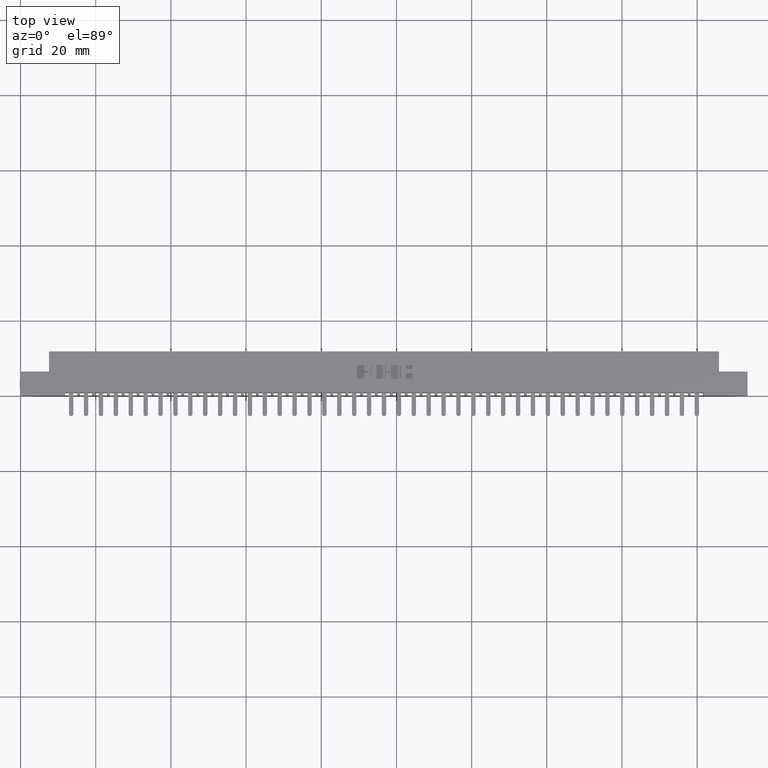
[diagram: clean part render]
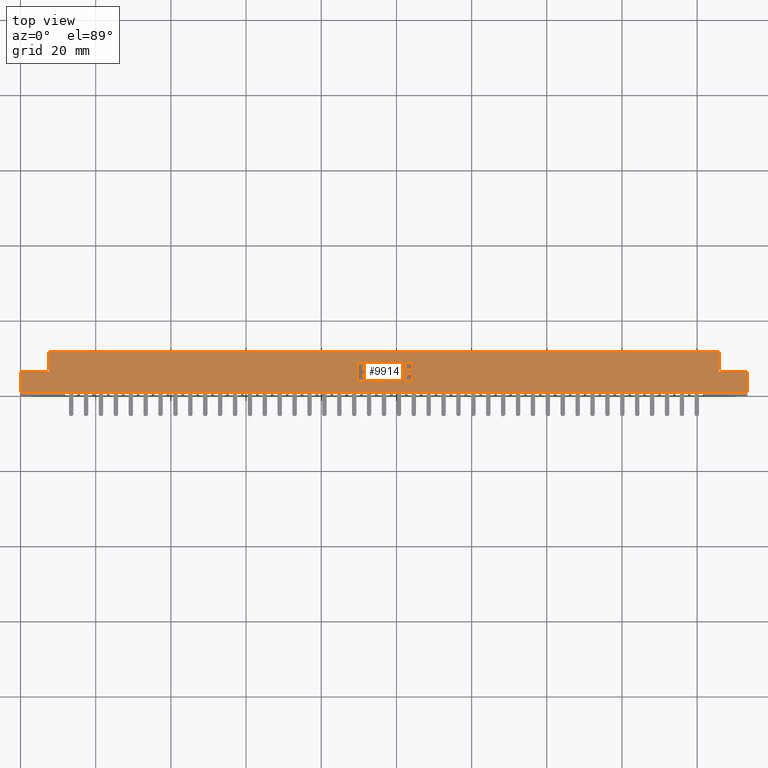
[diagram: same view with one face highlighted and labeled with its STEP entity id]
A machine part, top view. The second image highlights one B-rep face of the part: STEP entity #9914.
In plain terms, the highlighted planar face has unit normal (0, 0, -1).
Its self-contained STEP definition (entity closure, byte-faithful):
#13 = CARTESIAN_POINT ( 'NONE',  ( 3.978038053301265364, 0.1571589681657933890, 0.0000000000000000000 ) ) ;
#22 = CIRCLE ( 'NONE', #37802, 0.009815670203803066735 ) ;
#34 = VECTOR ( 'NONE', #4186, 39.37007874015748143 ) ;
#88 = VECTOR ( 'NONE', #26526, 39.37007874015748143 ) ;
#276 = CARTESIAN_POINT ( 'NONE',  ( 3.941229290037010724, 0.1571589681657842852, 0.0000000000000000000 ) ) ;
#392 = ORIENTED_EDGE ( 'NONE', *, *, #21578, .T. ) ;
#442 = AXIS2_PLACEMENT_3D ( 'NONE', #27745, #18543, #15655 ) ;
#577 = VECTOR ( 'NONE', #10563, 39.37007874015748143 ) ;
#596 = CARTESIAN_POINT ( 'NONE',  ( 0.0000000000000000000, 0.2500000000000000555, 0.0000000000000000000 ) ) ;
#645 = LINE ( 'NONE', #13073, #21291 ) ;
#670 = CARTESIAN_POINT ( 'NONE',  ( 4.103678631909940755, 0.0000000000000000000, 0.0000000000000000000 ) ) ;
#849 = VERTEX_POINT ( 'NONE', #23104 ) ;
#882 = CARTESIAN_POINT ( 'NONE',  ( 3.798411288571669431, 0.3338410318342135419, 0.0000000000000000000 ) ) ;
#921 = CARTESIAN_POINT ( 'NONE',  ( -0.0000000000000000000, 0.1473432979619866134, 0.0000000000000000000 ) ) ;
#947 = VERTEX_POINT ( 'NONE', #11404 ) ;
#974 = DIRECTION ( 'NONE',  ( 1.000000000000000000, 0.0000000000000000000, 0.0000000000000000000 ) ) ;
#990 = DIRECTION ( 'NONE',  ( -1.000000000000000000, 0.0000000000000000000, -0.0000000000000000000 ) ) ;
#1055 = VERTEX_POINT ( 'NONE', #37157 ) ;
#1177 = VERTEX_POINT ( 'NONE', #1193 ) ;
#1193 = CARTESIAN_POINT ( 'NONE',  ( 3.626637060005084123, 0.2386290308573602581, 0.0000000000000000000 ) ) ;
#1354 = LINE ( 'NONE', #38883, #2437 ) ;
#1481 = CIRCLE ( 'NONE', #23624, 0.009815670203787768208 ) ;
#1524 = LINE ( 'NONE', #921, #34 ) ;
#1545 = EDGE_CURVE ( 'NONE', #33516, #28561, #35057, .T. ) ;
#1549 = CARTESIAN_POINT ( 'NONE',  ( 3.981964321382818639, 0.1873421540424564380, 0.0000000000000000000 ) ) ;
#1585 = DIRECTION ( 'NONE',  ( -0.0000000000000000000, 0.0000000000000000000, 1.000000000000000000 ) ) ;
#1596 = FACE_OUTER_BOUND ( 'NONE', #15384, .T. ) ;
#1646 = VERTEX_POINT ( 'NONE', #20338 ) ;
#1705 = LINE ( 'NONE', #5373, #12940 ) ;
#1806 = DIRECTION ( 'NONE',  ( 1.000000000000000000, 0.0000000000000000000, 0.0000000000000000000 ) ) ;
#1809 = EDGE_CURVE ( 'NONE', #3516, #16941, #25321, .T. ) ;
#1828 = CARTESIAN_POINT ( 'NONE',  ( 4.034478156973166030, 0.0000000000000000000, 0.0000000000000000000 ) ) ;
#1831 = ORIENTED_EDGE ( 'NONE', *, *, #4949, .T. ) ;
#1970 = DIRECTION ( 'NONE',  ( 1.000000000000000000, 0.0000000000000000000, 0.0000000000000000000 ) ) ;
#2039 = DIRECTION ( 'NONE',  ( 0.0000000000000000000, -1.000000000000000000, 0.0000000000000000000 ) ) ;
#2067 = EDGE_LOOP ( 'NONE', ( #9147, #6451, #392, #31822, #4927, #18411, #3649, #37374, #2541, #18456, #31696, #39348, #24249, #17886 ) ) ;
#2096 = VERTEX_POINT ( 'NONE', #5326 ) ;
#2275 = CARTESIAN_POINT ( 'NONE',  ( 3.626637060005084123, 0.2072188862052039837, 0.0000000000000000000 ) ) ;
#2437 = VECTOR ( 'NONE', #7451, 39.37007874015748143 ) ;
#2457 = EDGE_CURVE ( 'NONE', #34025, #22173, #38552, .T. ) ;
#2541 = ORIENTED_EDGE ( 'NONE', *, *, #29084, .T. ) ;
#2607 = EDGE_CURVE ( 'NONE', #25742, #35543, #7903, .T. ) ;
#2647 = VERTEX_POINT ( 'NONE', #11969 ) ;
#2649 = VERTEX_POINT ( 'NONE', #40155 ) ;
#2736 = DIRECTION ( 'NONE',  ( 1.000000000000000000, 0.0000000000000000000, 0.0000000000000000000 ) ) ;
#2758 = EDGE_LOOP ( 'NONE', ( #8494, #9590, #12289, #7552, #17605, #39168, #31809, #24742, #8286, #29663, #34497, #11203, #36993, #21813, #6831, #17223, #34285, #37948, #9564, #36787 ) ) ;
#2792 = AXIS2_PLACEMENT_3D ( 'NONE', #30954, #12901, #15396 ) ;
#2889 = DIRECTION ( 'NONE',  ( 1.000000000000000000, 0.0000000000000000000, 0.0000000000000000000 ) ) ;
#2983 = EDGE_CURVE ( 'NONE', #13417, #13649, #22787, .T. ) ;
#3300 = ORIENTED_EDGE ( 'NONE', *, *, #27101, .T. ) ;
#3431 = VERTEX_POINT ( 'NONE', #38110 ) ;
#3432 = CARTESIAN_POINT ( 'NONE',  ( 7.613999999999999879, 0.2500000000000000555, 0.0000000000000000000 ) ) ;
#3516 = VERTEX_POINT ( 'NONE', #28952 ) ;
#3532 = DIRECTION ( 'NONE',  ( -0.0000000000000000000, 0.0000000000000000000, 1.000000000000000000 ) ) ;
#3538 = DIRECTION ( 'NONE',  ( -0.0000000000000000000, 1.000000000000000000, -0.0000000000000000000 ) ) ;
#3612 = VECTOR ( 'NONE', #36447, 39.37007874015748143 ) ;
#3624 = VERTEX_POINT ( 'NONE', #38296 ) ;
#3649 = ORIENTED_EDGE ( 'NONE', *, *, #2607, .T. ) ;
#3665 = LINE ( 'NONE', #596, #10520 ) ;
#3669 = AXIS2_PLACEMENT_3D ( 'NONE', #7915, #24269, #1806 ) ;
#3794 = DIRECTION ( 'NONE',  ( 1.000000000000000000, 0.0000000000000000000, 0.0000000000000000000 ) ) ;
#3930 = DIRECTION ( 'NONE',  ( 1.000000000000000000, 0.0000000000000000000, 0.0000000000000000000 ) ) ;
#3938 = LINE ( 'NONE', #12683, #17541 ) ;
#3941 = ORIENTED_EDGE ( 'NONE', *, *, #23140, .F. ) ;
#3970 = EDGE_CURVE ( 'NONE', #3624, #4140, #1524, .T. ) ;
#4031 = CARTESIAN_POINT ( 'NONE',  ( 0.0000000000000000000, 0.2500000000000000555, 0.0000000000000000000 ) ) ;
#4049 = DIRECTION ( 'NONE',  ( -0.0000000000000000000, 0.0000000000000000000, 1.000000000000000000 ) ) ;
#4140 = VERTEX_POINT ( 'NONE', #23563 ) ;
#4186 = DIRECTION ( 'NONE',  ( 1.000000000000000000, 0.0000000000000000000, 0.0000000000000000000 ) ) ;
#4325 = AXIS2_PLACEMENT_3D ( 'NONE', #17296, #36289, #27534 ) ;
#4335 = CIRCLE ( 'NONE', #10784, 0.009815670203805798924 ) ;
#4343 = ORIENTED_EDGE ( 'NONE', *, *, #25117, .F. ) ;
#4461 = DIRECTION ( 'NONE',  ( 1.000000000000000000, 0.0000000000000000000, 0.0000000000000000000 ) ) ;
#4657 = VERTEX_POINT ( 'NONE', #26560 ) ;
#4786 = AXIS2_PLACEMENT_3D ( 'NONE', #21470, #40237, #22079 ) ;
#4792 = VERTEX_POINT ( 'NONE', #31058 ) ;
#4793 = CARTESIAN_POINT ( 'NONE',  ( 3.951044960240806425, 0.1571589681657842852, 0.0000000000000000000 ) ) ;
#4927 = ORIENTED_EDGE ( 'NONE', *, *, #11996, .T. ) ;
#4949 = EDGE_CURVE ( 'NONE', #947, #14975, #17676, .T. ) ;
#5071 = LINE ( 'NONE', #17529, #39497 ) ;
#5308 = VERTEX_POINT ( 'NONE', #13934 ) ;
#5326 = CARTESIAN_POINT ( 'NONE',  ( 4.034478156973166030, 0.3036578454992633347, 0.0000000000000000000 ) ) ;
#5354 = VERTEX_POINT ( 'NONE', #17024 ) ;
#5373 = CARTESIAN_POINT ( 'NONE',  ( -0.0000000000000000000, 0.2386290308573602581, 0.0000000000000000000 ) ) ;
#5409 = CARTESIAN_POINT ( 'NONE',  ( 3.595226915352909725, 0.0000000000000000000, 0.0000000000000000000 ) ) ;
#5614 = DIRECTION ( 'NONE',  ( -0.0000000000000000000, 0.0000000000000000000, 1.000000000000000000 ) ) ;
#5843 = DIRECTION ( 'NONE',  ( 1.000000000000000000, 0.0000000000000000000, 0.0000000000000000000 ) ) ;
#5868 = CIRCLE ( 'NONE', #28705, 0.009815670203822736764 ) ;
#5901 = ORIENTED_EDGE ( 'NONE', *, *, #2457, .F. ) ;
#6059 = DIRECTION ( 'NONE',  ( -1.000000000000000000, 0.0000000000000000000, 0.0000000000000000000 ) ) ;
#6104 = VERTEX_POINT ( 'NONE', #16713 ) ;
#6119 = EDGE_CURVE ( 'NONE', #22573, #35307, #26258, .T. ) ;
#6305 = AXIS2_PLACEMENT_3D ( 'NONE', #32334, #32527, #9005 ) ;
#6412 = ORIENTED_EDGE ( 'NONE', *, *, #34072, .F. ) ;
#6451 = ORIENTED_EDGE ( 'NONE', *, *, #20317, .F. ) ;
#6544 = DIRECTION ( 'NONE',  ( 1.000000000000000000, 0.0000000000000000000, 0.0000000000000000000 ) ) ;
#6703 = CARTESIAN_POINT ( 'NONE',  ( 7.316000000000000725, 0.2500000000000000555, 0.0000000000000000000 ) ) ;
#6768 = ORIENTED_EDGE ( 'NONE', *, *, #1809, .F. ) ;
#6780 = VERTEX_POINT ( 'NONE', #32821 ) ;
#6781 = DIRECTION ( 'NONE',  ( -0.0000000000000000000, 0.0000000000000000000, 1.000000000000000000 ) ) ;
#6809 = DIRECTION ( 'NONE',  ( 1.000000000000000000, 0.0000000000000000000, 0.0000000000000000000 ) ) ;
#6831 = ORIENTED_EDGE ( 'NONE', *, *, #25980, .F. ) ;
#7121 = CARTESIAN_POINT ( 'NONE',  ( 3.941229290037011612, 0.3338410318342138194, 0.0000000000000000000 ) ) ;
#7201 = CIRCLE ( 'NONE', #30038, 0.009815670203841313918 ) ;
#7329 = AXIS2_PLACEMENT_3D ( 'NONE', #16322, #13626, #25733 ) ;
#7378 = CARTESIAN_POINT ( 'NONE',  ( 4.044293827176966616, 0.2268502266127609690, 0.0000000000000000000 ) ) ;
#7415 = EDGE_CURVE ( 'NONE', #4140, #10950, #34060, .T. ) ;
#7422 = EDGE_CURVE ( 'NONE', #9441, #22645, #39971, .T. ) ;
#7451 = DIRECTION ( 'NONE',  ( -1.000000000000000000, -3.427012734660361250E-14, 0.0000000000000000000 ) ) ;
#7496 = EDGE_LOOP ( 'NONE', ( #3941, #7613, #38507, #36549, #13126, #13166, #31703, #5901 ) ) ;
#7501 = LINE ( 'NONE', #38744, #8936 ) ;
#7542 = CIRCLE ( 'NONE', #30397, 0.009815670203806891800 ) ;
#7552 = ORIENTED_EDGE ( 'NONE', *, *, #34517, .F. ) ;
#7613 = ORIENTED_EDGE ( 'NONE', *, *, #15180, .F. ) ;
#7644 = EDGE_CURVE ( 'NONE', #10950, #34641, #28645, .T. ) ;
#7716 = ORIENTED_EDGE ( 'NONE', *, *, #26425, .F. ) ;
#7721 = CARTESIAN_POINT ( 'NONE',  ( 0.2979999999999999871, 0.2500000000000000555, 0.0000000000000000000 ) ) ;
#7903 = LINE ( 'NONE', #20397, #27308 ) ;
#7915 = CARTESIAN_POINT ( 'NONE',  ( 4.093862961706132175, 0.3338410318342143746, 0.0000000000000000000 ) ) ;
#7999 = EDGE_CURVE ( 'NONE', #14605, #2649, #39625, .T. ) ;
#8095 = EDGE_CURVE ( 'NONE', #4657, #3431, #25135, .T. ) ;
#8111 = EDGE_CURVE ( 'NONE', #24753, #17243, #31676, .T. ) ;
#8133 = DIRECTION ( 'NONE',  ( 0.0000000000000000000, -1.000000000000000000, 0.0000000000000000000 ) ) ;
#8252 = VECTOR ( 'NONE', #38150, 39.37007874015748143 ) ;
#8286 = ORIENTED_EDGE ( 'NONE', *, *, #35216, .F. ) ;
#8441 = VERTEX_POINT ( 'NONE', #15062 ) ;
#8488 = CIRCLE ( 'NONE', #18955, 0.03141014465217440571 ) ;
#8494 = ORIENTED_EDGE ( 'NONE', *, *, #39254, .F. ) ;
#8582 = EDGE_CURVE ( 'NONE', #16941, #1646, #22234, .T. ) ;
#8719 = CARTESIAN_POINT ( 'NONE',  ( 4.093862961706153492, 0.2170345564089738721, 0.0000000000000000000 ) ) ;
#8819 = VERTEX_POINT ( 'NONE', #33624 ) ;
#8862 = EDGE_CURVE ( 'NONE', #5308, #36300, #26292, .T. ) ;
#8907 = CARTESIAN_POINT ( 'NONE',  ( 4.093862961706133952, 0.1571589681657933890, 0.0000000000000000000 ) ) ;
#8936 = VECTOR ( 'NONE', #10340, 39.37007874015748143 ) ;
#9005 = DIRECTION ( 'NONE',  ( 1.000000000000000000, 0.0000000000000000000, 0.0000000000000000000 ) ) ;
#9012 = CARTESIAN_POINT ( 'NONE',  ( 3.595226915352909725, 0.2985046191005232274, 0.0000000000000000000 ) ) ;
#9133 = CARTESIAN_POINT ( 'NONE',  ( 0.0000000000000000000, 0.3436567020380361659, 0.0000000000000000000 ) ) ;
#9141 = AXIS2_PLACEMENT_3D ( 'NONE', #2275, #30658, #30876 ) ;
#9147 = ORIENTED_EDGE ( 'NONE', *, *, #25475, .T. ) ;
#9330 = EDGE_CURVE ( 'NONE', #27591, #35311, #32213, .T. ) ;
#9366 = DIRECTION ( 'NONE',  ( -1.000000000000000000, 0.0000000000000000000, 0.0000000000000000000 ) ) ;
#9372 = CARTESIAN_POINT ( 'NONE',  ( 3.981964321382818639, 0.0000000000000000000, 0.0000000000000000000 ) ) ;
#9441 = VERTEX_POINT ( 'NONE', #7721 ) ;
#9467 = CARTESIAN_POINT ( 'NONE',  ( 3.881844485303985071, 0.1571589681657912518, 0.0000000000000000000 ) ) ;
#9518 = CIRCLE ( 'NONE', #18673, 0.009815670203787221770 ) ;
#9564 = ORIENTED_EDGE ( 'NONE', *, *, #26211, .F. ) ;
#9575 = CARTESIAN_POINT ( 'NONE',  ( -0.0000000000000000000, 0.1473432979619866134, 0.0000000000000000000 ) ) ;
#9590 = ORIENTED_EDGE ( 'NONE', *, *, #8111, .F. ) ;
#9752 = AXIS2_PLACEMENT_3D ( 'NONE', #18022, #11883, #2736 ) ;
#9792 = CARTESIAN_POINT ( 'NONE',  ( 3.825404381632127482, 0.3338410318342135419, 0.0000000000000000000 ) ) ;
#9875 = VECTOR ( 'NONE', #33853, 39.37007874015748143 ) ;
#9914 = ADVANCED_FACE ( 'NONE', ( #29578, #26089, #1596, #32233, #13811 ), #13213, .F. ) ;
#9972 = DIRECTION ( 'NONE',  ( 1.000000000000000000, 6.876017002796106242E-15, 0.0000000000000000000 ) ) ;
#10340 = DIRECTION ( 'NONE',  ( 0.0000000000000000000, -1.000000000000000000, 0.0000000000000000000 ) ) ;
#10421 = CARTESIAN_POINT ( 'NONE',  ( 3.647004575677973204, 0.2455000000000237825, 0.0000000000000000000 ) ) ;
#10500 = ORIENTED_EDGE ( 'NONE', *, *, #39594, .T. ) ;
#10520 = VECTOR ( 'NONE', #19791, 39.37007874015748143 ) ;
#10563 = DIRECTION ( 'NONE',  ( -1.000000000000000000, 0.0000000000000000000, 0.0000000000000000000 ) ) ;
#10740 = CARTESIAN_POINT ( 'NONE',  ( 0.0000000000000000000, 0.3436567020380544846, 0.0000000000000000000 ) ) ;
#10745 = EDGE_CURVE ( 'NONE', #35543, #38627, #15949, .T. ) ;
#10784 = AXIS2_PLACEMENT_3D ( 'NONE', #36691, #39528, #17698 ) ;
#10950 = VERTEX_POINT ( 'NONE', #28782 ) ;
#11046 = EDGE_CURVE ( 'NONE', #33344, #33896, #12063, .T. ) ;
#11121 = CARTESIAN_POINT ( 'NONE',  ( 3.626637060005109436, 0.1924953808994938065, 0.0000000000000000000 ) ) ;
#11173 = DIRECTION ( 'NONE',  ( 1.000000000000000000, 0.0000000000000000000, 0.0000000000000000000 ) ) ;
#11203 = ORIENTED_EDGE ( 'NONE', *, *, #7644, .F. ) ;
#11288 = ORIENTED_EDGE ( 'NONE', *, *, #27261, .F. ) ;
#11403 = DIRECTION ( 'NONE',  ( 1.000000000000000000, 0.0000000000000000000, 0.0000000000000000000 ) ) ;
#11404 = CARTESIAN_POINT ( 'NONE',  ( 3.595226915352927488, 0.1924953808994938065, 0.0000000000000000000 ) ) ;
#11503 = EDGE_CURVE ( 'NONE', #11814, #13649, #5071, .T. ) ;
#11645 = LINE ( 'NONE', #23750, #16226 ) ;
#11707 = AXIS2_PLACEMENT_3D ( 'NONE', #7121, #23264, #4461 ) ;
#11720 = ORIENTED_EDGE ( 'NONE', *, *, #12380, .F. ) ;
#11814 = VERTEX_POINT ( 'NONE', #13992 ) ;
#11840 = CARTESIAN_POINT ( 'NONE',  ( 3.662955039759169029, 0.0000000000000000000, 0.0000000000000000000 ) ) ;
#11883 = DIRECTION ( 'NONE',  ( -0.0000000000000000000, 0.0000000000000000000, 1.000000000000000000 ) ) ;
#11936 = EDGE_CURVE ( 'NONE', #22763, #20602, #4335, .T. ) ;
#11948 = CARTESIAN_POINT ( 'NONE',  ( 3.626637060005084123, 0.2837811137948617612, 0.0000000000000000000 ) ) ;
#11949 = AXIS2_PLACEMENT_3D ( 'NONE', #9792, #22292, #25144 ) ;
#11953 = VECTOR ( 'NONE', #30266, 39.37007874015748143 ) ;
#11969 = CARTESIAN_POINT ( 'NONE',  ( 3.941229290037013833, 0.3436567020380100757, 0.0000000000000000000 ) ) ;
#11996 = EDGE_CURVE ( 'NONE', #5354, #38012, #34436, .T. ) ;
#12063 = CIRCLE ( 'NONE', #21902, 0.006870969142663458512 ) ;
#12289 = ORIENTED_EDGE ( 'NONE', *, *, #39225, .F. ) ;
#12294 = CARTESIAN_POINT ( 'NONE',  ( 0.2979999999999999871, 0.4600000000000000200, 0.0000000000000000000 ) ) ;
#12371 = VECTOR ( 'NONE', #28916, 39.37007874015748143 ) ;
#12380 = EDGE_CURVE ( 'NONE', #38870, #35307, #14560, .T. ) ;
#12438 = VECTOR ( 'NONE', #38622, 39.37007874015748143 ) ;
#12439 = DIRECTION ( 'NONE',  ( -0.0000000000000000000, 0.0000000000000000000, 1.000000000000000000 ) ) ;
#12463 = LINE ( 'NONE', #12842, #33698 ) ;
#12484 = EDGE_CURVE ( 'NONE', #6104, #6780, #12463, .T. ) ;
#12535 = CARTESIAN_POINT ( 'NONE',  ( 3.647004575677997629, 0.1542142671046513869, 0.0000000000000000000 ) ) ;
#12564 = CARTESIAN_POINT ( 'NONE',  ( 0.0000000000000000000, 0.1473432979619880290, 0.0000000000000000000 ) ) ;
#12667 = DIRECTION ( 'NONE',  ( 0.0000000000000000000, 1.000000000000000000, -0.0000000000000000000 ) ) ;
#12683 = CARTESIAN_POINT ( 'NONE',  ( 7.316000000000000725, 0.2500000000000000555, 0.0000000000000000000 ) ) ;
#12842 = CARTESIAN_POINT ( 'NONE',  ( 7.613999999999999879, 0.03099999999999999978, 0.0000000000000000000 ) ) ;
#12901 = DIRECTION ( 'NONE',  ( -0.0000000000000000000, 0.0000000000000000000, 1.000000000000000000 ) ) ;
#12937 = DIRECTION ( 'NONE',  ( -0.0000000000000000000, 0.0000000000000000000, 1.000000000000000000 ) ) ;
#12940 = VECTOR ( 'NONE', #20668, 39.37007874015748143 ) ;
#12947 = CARTESIAN_POINT ( 'NONE',  ( -0.0000000000000000000, 0.3299147637527391486, 0.0000000000000000000 ) ) ;
#13073 = CARTESIAN_POINT ( 'NONE',  ( 3.595226915352927488, 0.0000000000000000000, 0.0000000000000000000 ) ) ;
#13126 = ORIENTED_EDGE ( 'NONE', *, *, #32542, .F. ) ;
#13166 = ORIENTED_EDGE ( 'NONE', *, *, #7999, .F. ) ;
#13205 = VECTOR ( 'NONE', #37526, 39.37007874015748143 ) ;
#13213 = PLANE ( 'NONE',  #31592 ) ;
#13288 = LINE ( 'NONE', #32500, #12438 ) ;
#13368 = ORIENTED_EDGE ( 'NONE', *, *, #27915, .F. ) ;
#13417 = VERTEX_POINT ( 'NONE', #1549 ) ;
#13525 = AXIS2_PLACEMENT_3D ( 'NONE', #18489, #27693, #39694 ) ;
#13548 = DIRECTION ( 'NONE',  ( 1.000000000000000000, -0.0000000000000000000, -0.0000000000000000000 ) ) ;
#13626 = DIRECTION ( 'NONE',  ( -0.0000000000000000000, 0.0000000000000000000, 1.000000000000000000 ) ) ;
#13638 = AXIS2_PLACEMENT_3D ( 'NONE', #24571, #3532, #15954 ) ;
#13649 = VERTEX_POINT ( 'NONE', #18665 ) ;
#13701 = AXIS2_PLACEMENT_3D ( 'NONE', #36405, #20677, #37018 ) ;
#13811 = FACE_BOUND ( 'NONE', #2067, .T. ) ;
#13853 = VERTEX_POINT ( 'NONE', #32142 ) ;
#13904 = LINE ( 'NONE', #16768, #19637 ) ;
#13929 = LINE ( 'NONE', #23165, #23193 ) ;
#13934 = CARTESIAN_POINT ( 'NONE',  ( 3.815588711428330893, 0.1542142671046513869, 0.0000000000000000000 ) ) ;
#13992 = CARTESIAN_POINT ( 'NONE',  ( 4.034478156973179352, 0.2170345564089721235, 0.0000000000000000000 ) ) ;
#14229 = CARTESIAN_POINT ( 'NONE',  ( 3.951044960240806425, 0.3338410318342043825, 0.0000000000000000000 ) ) ;
#14234 = CARTESIAN_POINT ( 'NONE',  ( 3.951044960240806425, 0.0000000000000000000, 0.0000000000000000000 ) ) ;
#14247 = VERTEX_POINT ( 'NONE', #19224 ) ;
#14480 = CARTESIAN_POINT ( 'NONE',  ( 3.891660155507787877, 0.1571589681657912518, 0.0000000000000000000 ) ) ;
#14484 = VECTOR ( 'NONE', #13548, 39.37007874015748143 ) ;
#14513 = EDGE_CURVE ( 'NONE', #21110, #15842, #38098, .T. ) ;
#14560 = LINE ( 'NONE', #5409, #38876 ) ;
#14580 = LINE ( 'NONE', #39502, #3612 ) ;
#14605 = VERTEX_POINT ( 'NONE', #32785 ) ;
#14655 = LINE ( 'NONE', #1828, #32714 ) ;
#14837 = VECTOR ( 'NONE', #29324, 39.37007874015748143 ) ;
#14860 = ORIENTED_EDGE ( 'NONE', *, *, #22160, .T. ) ;
#14929 = VECTOR ( 'NONE', #38481, 39.37007874015748143 ) ;
#14975 = VERTEX_POINT ( 'NONE', #19274 ) ;
#14982 = CARTESIAN_POINT ( 'NONE',  ( 4.008221239177998108, 0.1873421540424564380, 0.0000000000000000000 ) ) ;
#15062 = CARTESIAN_POINT ( 'NONE',  ( 3.798411288571669431, 0.1571589681657933890, 0.0000000000000000000 ) ) ;
#15180 = EDGE_CURVE ( 'NONE', #8441, #32666, #11645, .T. ) ;
#15238 = EDGE_CURVE ( 'NONE', #1177, #33344, #1705, .T. ) ;
#15384 = EDGE_LOOP ( 'NONE', ( #37267, #20999, #6412, #33281, #34905, #3300, #19416, #27601 ) ) ;
#15396 = DIRECTION ( 'NONE',  ( 1.000000000000000000, 0.0000000000000000000, 0.0000000000000000000 ) ) ;
#15503 = CARTESIAN_POINT ( 'NONE',  ( 4.093862961706166814, 0.2744562271012369603, 0.0000000000000000000 ) ) ;
#15611 = CIRCLE ( 'NONE', #22912, 0.009815670203806891800 ) ;
#15655 = DIRECTION ( 'NONE',  ( 1.000000000000000000, 0.0000000000000000000, 0.0000000000000000000 ) ) ;
#15779 = DIRECTION ( 'NONE',  ( 1.000000000000000000, 0.0000000000000000000, 0.0000000000000000000 ) ) ;
#15835 = CARTESIAN_POINT ( 'NONE',  ( 4.093862961706156156, 0.2268502266127609690, 0.0000000000000000000 ) ) ;
#15842 = VERTEX_POINT ( 'NONE', #7378 ) ;
#15878 = EDGE_CURVE ( 'NONE', #1646, #36792, #5868, .T. ) ;
#15900 = LINE ( 'NONE', #25303, #28422 ) ;
#15926 = CARTESIAN_POINT ( 'NONE',  ( -0.0000000000000000000, 0.2744562271012370158, 0.0000000000000000000 ) ) ;
#15949 = CIRCLE ( 'NONE', #25127, 0.009815670203797057652 ) ;
#15954 = DIRECTION ( 'NONE',  ( 1.000000000000000000, 0.0000000000000000000, 0.0000000000000000000 ) ) ;
#15982 = DIRECTION ( 'NONE',  ( -0.0000000000000000000, 0.0000000000000000000, 1.000000000000000000 ) ) ;
#16089 = CIRCLE ( 'NONE', #29141, 0.006870969142662365636 ) ;
#16226 = VECTOR ( 'NONE', #23551, 39.37007874015748143 ) ;
#16322 = CARTESIAN_POINT ( 'NONE',  ( 3.626637060005125424, 0.2985046191005232274, 0.0000000000000000000 ) ) ;
#16585 = EDGE_CURVE ( 'NONE', #25447, #36003, #35030, .T. ) ;
#16661 = CARTESIAN_POINT ( 'NONE',  ( 3.839146319917449812, 0.2288133606535490416, 0.0000000000000000000 ) ) ;
#16674 = LINE ( 'NONE', #32030, #24890 ) ;
#16713 = CARTESIAN_POINT ( 'NONE',  ( 7.613999999999999879, 0.03099999999999999978, 0.0000000000000000000 ) ) ;
#16768 = CARTESIAN_POINT ( 'NONE',  ( 7.613999999999999879, 0.4600000000000000200, 0.0000000000000000000 ) ) ;
#16841 = LINE ( 'NONE', #38287, #14837 ) ;
#16941 = VERTEX_POINT ( 'NONE', #31711 ) ;
#17024 = CARTESIAN_POINT ( 'NONE',  ( 3.941229290037010724, 0.1473432979619880290, 0.0000000000000000000 ) ) ;
#17066 = DIRECTION ( 'NONE',  ( 1.000000000000000000, 0.0000000000000000000, 0.0000000000000000000 ) ) ;
#17077 = ORIENTED_EDGE ( 'NONE', *, *, #19025, .F. ) ;
#17130 = CARTESIAN_POINT ( 'NONE',  ( 3.815588711428330893, 0.0000000000000000000, 0.0000000000000000000 ) ) ;
#17162 = AXIS2_PLACEMENT_3D ( 'NONE', #36474, #26674, #20546 ) ;
#17223 = ORIENTED_EDGE ( 'NONE', *, *, #28749, .F. ) ;
#17243 = VERTEX_POINT ( 'NONE', #15503 ) ;
#17245 = CARTESIAN_POINT ( 'NONE',  ( 3.872028815100188037, 0.2386290308573532359, 0.0000000000000000000 ) ) ;
#17296 = CARTESIAN_POINT ( 'NONE',  ( 4.008221239177991890, 0.3036578459575330347, 0.0000000000000000000 ) ) ;
#17312 = DIRECTION ( 'NONE',  ( -0.0000000000000000000, 0.0000000000000000000, 1.000000000000000000 ) ) ;
#17412 = VERTEX_POINT ( 'NONE', #29609 ) ;
#17438 = ORIENTED_EDGE ( 'NONE', *, *, #38408, .F. ) ;
#17485 = EDGE_CURVE ( 'NONE', #5308, #35311, #36125, .T. ) ;
#17529 = CARTESIAN_POINT ( 'NONE',  ( 4.034478156973179352, 0.0000000000000000000, 0.0000000000000000000 ) ) ;
#17541 = VECTOR ( 'NONE', #3538, 39.37007874015748143 ) ;
#17605 = ORIENTED_EDGE ( 'NONE', *, *, #27628, .T. ) ;
#17632 = CIRCLE ( 'NONE', #24829, 0.009815670203803066735 ) ;
#17676 = CIRCLE ( 'NONE', #30086, 0.03141014465218205237 ) ;
#17698 = DIRECTION ( 'NONE',  ( 1.000000000000000000, 0.0000000000000000000, 0.0000000000000000000 ) ) ;
#17773 = VECTOR ( 'NONE', #37238, 39.37007874015748143 ) ;
#17886 = ORIENTED_EDGE ( 'NONE', *, *, #9330, .F. ) ;
#18017 = CIRCLE ( 'NONE', #442, 0.006870969142648706424 ) ;
#18022 = CARTESIAN_POINT ( 'NONE',  ( 4.044293827176977274, 0.2842718973050486486, 0.0000000000000000000 ) ) ;
#18411 = ORIENTED_EDGE ( 'NONE', *, *, #38994, .F. ) ;
#18447 = DIRECTION ( 'NONE',  ( 1.000000000000000000, 0.0000000000000000000, 0.0000000000000000000 ) ) ;
#18456 = ORIENTED_EDGE ( 'NONE', *, *, #20755, .T. ) ;
#18489 = CARTESIAN_POINT ( 'NONE',  ( 3.640133606535351340, 0.3367857328953897111, 0.0000000000000000000 ) ) ;
#18543 = DIRECTION ( 'NONE',  ( -0.0000000000000000000, 0.0000000000000000000, 1.000000000000000000 ) ) ;
#18665 = CARTESIAN_POINT ( 'NONE',  ( 4.034478156973179352, 0.1873421540424564380, 0.0000000000000000000 ) ) ;
#18673 = AXIS2_PLACEMENT_3D ( 'NONE', #8719, #17312, #23858 ) ;
#18891 = VERTEX_POINT ( 'NONE', #34289 ) ;
#18955 = AXIS2_PLACEMENT_3D ( 'NONE', #11948, #24439, #5843 ) ;
#18960 = CARTESIAN_POINT ( 'NONE',  ( 3.626637060005084123, 0.2523709691426872515, 0.0000000000000000000 ) ) ;
#19025 = EDGE_CURVE ( 'NONE', #36792, #22763, #16674, .T. ) ;
#19054 = DIRECTION ( 'NONE',  ( -0.0000000000000000000, 0.0000000000000000000, 1.000000000000000000 ) ) ;
#19224 = CARTESIAN_POINT ( 'NONE',  ( 3.981964321382818639, 0.3036578459575330347, 0.0000000000000000000 ) ) ;
#19274 = CARTESIAN_POINT ( 'NONE',  ( 3.626637060005109436, 0.1610852362473120247, 0.0000000000000000000 ) ) ;
#19416 = ORIENTED_EDGE ( 'NONE', *, *, #12484, .F. ) ;
#19637 = VECTOR ( 'NONE', #22942, 39.37007874015748143 ) ;
#19762 = EDGE_CURVE ( 'NONE', #33516, #25270, #3938, .T. ) ;
#19791 = DIRECTION ( 'NONE',  ( 1.000000000000000000, 0.0000000000000000000, 0.0000000000000000000 ) ) ;
#20188 = DIRECTION ( 'NONE',  ( 0.0000000000000000000, 1.000000000000000000, -0.0000000000000000000 ) ) ;
#20293 = CARTESIAN_POINT ( 'NONE',  ( 3.640133606535309596, 0.2523709691426872515, 0.0000000000000000000 ) ) ;
#20317 = EDGE_CURVE ( 'NONE', #33149, #2647, #37837, .T. ) ;
#20338 = CARTESIAN_POINT ( 'NONE',  ( 3.535842110619938250, 0.3436567020380361659, 0.0000000000000000000 ) ) ;
#20397 = CARTESIAN_POINT ( 'NONE',  ( 3.881844485303985071, 0.0000000000000000000, 0.0000000000000000000 ) ) ;
#20486 = VERTEX_POINT ( 'NONE', #27134 ) ;
#20546 = DIRECTION ( 'NONE',  ( 1.000000000000000000, 0.0000000000000000000, 0.0000000000000000000 ) ) ;
#20602 = VERTEX_POINT ( 'NONE', #24892 ) ;
#20668 = DIRECTION ( 'NONE',  ( 1.000000000000000000, 0.0000000000000000000, 0.0000000000000000000 ) ) ;
#20677 = DIRECTION ( 'NONE',  ( -0.0000000000000000000, 0.0000000000000000000, 1.000000000000000000 ) ) ;
#20755 = EDGE_CURVE ( 'NONE', #20486, #8819, #17632, .T. ) ;
#20963 = DIRECTION ( 'NONE',  ( 1.000000000000000000, 0.0000000000000000000, 0.0000000000000000000 ) ) ;
#20999 = ORIENTED_EDGE ( 'NONE', *, *, #19762, .T. ) ;
#21040 = VERTEX_POINT ( 'NONE', #40129 ) ;
#21110 = VERTEX_POINT ( 'NONE', #15835 ) ;
#21291 = VECTOR ( 'NONE', #12667, 39.37007874015748143 ) ;
#21387 = CARTESIAN_POINT ( 'NONE',  ( 0.2979999999999999871, 0.2500000000000000555, 0.0000000000000000000 ) ) ;
#21395 = ORIENTED_EDGE ( 'NONE', *, *, #28210, .F. ) ;
#21403 = VERTEX_POINT ( 'NONE', #39064 ) ;
#21470 = CARTESIAN_POINT ( 'NONE',  ( 3.640133606535335353, 0.1542142671046513869, 0.0000000000000000000 ) ) ;
#21578 = EDGE_CURVE ( 'NONE', #33149, #35663, #38959, .T. ) ;
#21813 = ORIENTED_EDGE ( 'NONE', *, *, #3970, .F. ) ;
#21865 = VERTEX_POINT ( 'NONE', #18960 ) ;
#21902 = AXIS2_PLACEMENT_3D ( 'NONE', #35306, #35499, #35104 ) ;
#21951 = CIRCLE ( 'NONE', #4325, 0.02625691779517394173 ) ;
#21968 = ORIENTED_EDGE ( 'NONE', *, *, #29823, .F. ) ;
#22079 = DIRECTION ( 'NONE',  ( 1.000000000000000000, 0.0000000000000000000, 0.0000000000000000000 ) ) ;
#22160 = EDGE_CURVE ( 'NONE', #38870, #21865, #8488, .T. ) ;
#22173 = VERTEX_POINT ( 'NONE', #36475 ) ;
#22234 = LINE ( 'NONE', #9133, #13205 ) ;
#22292 = DIRECTION ( 'NONE',  ( -0.0000000000000000000, 0.0000000000000000000, 1.000000000000000000 ) ) ;
#22385 = CARTESIAN_POINT ( 'NONE',  ( 0.0000000000000000000, 0.3436567020380544846, 0.0000000000000000000 ) ) ;
#22573 = VERTEX_POINT ( 'NONE', #23968 ) ;
#22584 = CARTESIAN_POINT ( 'NONE',  ( 3.881844485303985071, 0.2288133606535468767, 0.0000000000000000000 ) ) ;
#22594 = CIRCLE ( 'NONE', #3669, 0.009815670203840221042 ) ;
#22645 = VERTEX_POINT ( 'NONE', #12294 ) ;
#22659 = LINE ( 'NONE', #37968, #38985 ) ;
#22724 = VECTOR ( 'NONE', #28721, 39.37007874015748143 ) ;
#22763 = VERTEX_POINT ( 'NONE', #35190 ) ;
#22787 = CIRCLE ( 'NONE', #37123, 0.02625691779518049898 ) ;
#22861 = ORIENTED_EDGE ( 'NONE', *, *, #8582, .F. ) ;
#22912 = AXIS2_PLACEMENT_3D ( 'NONE', #25371, #37439, #15779 ) ;
#22942 = DIRECTION ( 'NONE',  ( -0.0000000000000000000, -1.000000000000000000, -0.0000000000000000000 ) ) ;
#23053 = ORIENTED_EDGE ( 'NONE', *, *, #15878, .F. ) ;
#23104 = CARTESIAN_POINT ( 'NONE',  ( 3.968222383097458117, 0.1571589681657933890, 0.0000000000000000000 ) ) ;
#23140 = EDGE_CURVE ( 'NONE', #32666, #34025, #39205, .T. ) ;
#23165 = CARTESIAN_POINT ( 'NONE',  ( 0.0000000000000000000, 0.4600000000000000200, 0.0000000000000000000 ) ) ;
#23193 = VECTOR ( 'NONE', #33371, 39.37007874015748143 ) ;
#23264 = DIRECTION ( 'NONE',  ( -0.0000000000000000000, 0.0000000000000000000, 1.000000000000000000 ) ) ;
#23551 = DIRECTION ( 'NONE',  ( 0.0000000000000000000, 1.000000000000000000, -0.0000000000000000000 ) ) ;
#23563 = CARTESIAN_POINT ( 'NONE',  ( 4.093862961706133952, 0.1473432979619866134, 0.0000000000000000000 ) ) ;
#23606 = CARTESIAN_POINT ( 'NONE',  ( 4.093862961706168591, 0.3436567020380544846, 0.0000000000000000000 ) ) ;
#23613 = EDGE_CURVE ( 'NONE', #30447, #9441, #3665, .T. ) ;
#23624 = AXIS2_PLACEMENT_3D ( 'NONE', #28511, #12937, #3794 ) ;
#23750 = CARTESIAN_POINT ( 'NONE',  ( 3.798411288571669431, 0.0000000000000000000, 0.0000000000000000000 ) ) ;
#23821 = EDGE_CURVE ( 'NONE', #22173, #14605, #37323, .T. ) ;
#23858 = DIRECTION ( 'NONE',  ( 1.000000000000000000, 0.0000000000000000000, 0.0000000000000000000 ) ) ;
#23901 = LINE ( 'NONE', #9372, #8252 ) ;
#23968 = CARTESIAN_POINT ( 'NONE',  ( 3.626637060005125424, 0.3299147637527391486, 0.0000000000000000000 ) ) ;
#24177 = CIRCLE ( 'NONE', #13701, 0.009815670203805252486 ) ;
#24249 = ORIENTED_EDGE ( 'NONE', *, *, #17485, .T. ) ;
#24269 = DIRECTION ( 'NONE',  ( -0.0000000000000000000, 0.0000000000000000000, 1.000000000000000000 ) ) ;
#24337 = EDGE_LOOP ( 'NONE', ( #31005, #11720, #14860, #11288, #13368, #37500, #37192, #10500, #21395, #1831, #4343, #26383, #35472, #21968, #38237, #17077, #23053, #22861, #6768, #7716, #17438 ) ) ;
#24379 = VECTOR ( 'NONE', #6544, 39.37007874015748143 ) ;
#24439 = DIRECTION ( 'NONE',  ( -0.0000000000000000000, 0.0000000000000000000, 1.000000000000000000 ) ) ;
#24469 = CARTESIAN_POINT ( 'NONE',  ( 3.788595618367827988, 0.3338410318342134309, 0.0000000000000000000 ) ) ;
#24571 = CARTESIAN_POINT ( 'NONE',  ( 3.788595618367861739, 0.1571589681657933890, 0.0000000000000000000 ) ) ;
#24742 = ORIENTED_EDGE ( 'NONE', *, *, #11503, .F. ) ;
#24753 = VERTEX_POINT ( 'NONE', #25309 ) ;
#24771 = CARTESIAN_POINT ( 'NONE',  ( 3.815588711428330893, 0.3338410318342135419, 0.0000000000000000000 ) ) ;
#24829 = AXIS2_PLACEMENT_3D ( 'NONE', #16661, #4049, #974 ) ;
#24860 = VECTOR ( 'NONE', #32911, 39.37007874015748143 ) ;
#24885 = AXIS2_PLACEMENT_3D ( 'NONE', #24469, #26712, #11173 ) ;
#24890 = VECTOR ( 'NONE', #25881, 39.37007874015748143 ) ;
#24892 = CARTESIAN_POINT ( 'NONE',  ( 3.535842110619918266, 0.1473432979619884176, 0.0000000000000000000 ) ) ;
#24963 = DIRECTION ( 'NONE',  ( -1.000000000000000000, -0.0000000000000000000, -0.0000000000000000000 ) ) ;
#25117 = EDGE_CURVE ( 'NONE', #4792, #14975, #27319, .T. ) ;
#25127 = AXIS2_PLACEMENT_3D ( 'NONE', #35196, #15982, #6809 ) ;
#25135 = LINE ( 'NONE', #9575, #30830 ) ;
#25144 = DIRECTION ( 'NONE',  ( 1.000000000000000000, 0.0000000000000000000, 0.0000000000000000000 ) ) ;
#25270 = VERTEX_POINT ( 'NONE', #25669 ) ;
#25303 = CARTESIAN_POINT ( 'NONE',  ( 0.0000000000000000000, 0.2523709691426872515, 0.0000000000000000000 ) ) ;
#25309 = CARTESIAN_POINT ( 'NONE',  ( 4.044293827176977274, 0.2744562271012370158, 0.0000000000000000000 ) ) ;
#25321 = CIRCLE ( 'NONE', #13525, 0.006870969142648706424 ) ;
#25371 = CARTESIAN_POINT ( 'NONE',  ( 3.672770709962975832, 0.1571589681657933890, 0.0000000000000000000 ) ) ;
#25447 = VERTEX_POINT ( 'NONE', #23606 ) ;
#25475 = EDGE_CURVE ( 'NONE', #27591, #2647, #14580, .T. ) ;
#25669 = CARTESIAN_POINT ( 'NONE',  ( 7.316000000000000725, 0.4600000000000000200, 0.0000000000000000000 ) ) ;
#25733 = DIRECTION ( 'NONE',  ( 1.000000000000000000, 0.0000000000000000000, 0.0000000000000000000 ) ) ;
#25742 = VERTEX_POINT ( 'NONE', #9467 ) ;
#25881 = DIRECTION ( 'NONE',  ( 0.0000000000000000000, -1.000000000000000000, 0.0000000000000000000 ) ) ;
#25887 = CARTESIAN_POINT ( 'NONE',  ( 0.0000000000000000000, 0.4600000000000000200, 0.0000000000000000000 ) ) ;
#25980 = EDGE_CURVE ( 'NONE', #849, #3624, #7542, .T. ) ;
#26089 = FACE_BOUND ( 'NONE', #24337, .T. ) ;
#26211 = EDGE_CURVE ( 'NONE', #21403, #25447, #22594, .T. ) ;
#26224 = EDGE_CURVE ( 'NONE', #34641, #21110, #9518, .T. ) ;
#26258 = CIRCLE ( 'NONE', #7329, 0.03141014465221592805 ) ;
#26292 = CIRCLE ( 'NONE', #17162, 0.006870969142657995000 ) ;
#26299 = DIRECTION ( 'NONE',  ( 0.0000000000000000000, 0.0000000000000000000, -1.000000000000000000 ) ) ;
#26383 = ORIENTED_EDGE ( 'NONE', *, *, #36352, .F. ) ;
#26425 = EDGE_CURVE ( 'NONE', #37517, #3516, #18017, .T. ) ;
#26473 = CARTESIAN_POINT ( 'NONE',  ( 3.978038053301299559, 0.3338410318342135419, 0.0000000000000000000 ) ) ;
#26526 = DIRECTION ( 'NONE',  ( 0.0000000000000000000, -1.000000000000000000, 0.0000000000000000000 ) ) ;
#26560 = CARTESIAN_POINT ( 'NONE',  ( 3.672770709962975832, 0.1473432979619866134, 0.0000000000000000000 ) ) ;
#26591 = EDGE_CURVE ( 'NONE', #1055, #29449, #16089, .T. ) ;
#26634 = VECTOR ( 'NONE', #39757, 39.37007874015748143 ) ;
#26674 = DIRECTION ( 'NONE',  ( -0.0000000000000000000, 0.0000000000000000000, 1.000000000000000000 ) ) ;
#26712 = DIRECTION ( 'NONE',  ( -0.0000000000000000000, 0.0000000000000000000, 1.000000000000000000 ) ) ;
#26773 = CIRCLE ( 'NONE', #9141, 0.03141014465215637153 ) ;
#26977 = DIRECTION ( 'NONE',  ( -0.0000000000000000000, 0.0000000000000000000, 1.000000000000000000 ) ) ;
#27101 = EDGE_CURVE ( 'NONE', #30447, #6780, #13929, .T. ) ;
#27134 = CARTESIAN_POINT ( 'NONE',  ( 3.839146319917449812, 0.2386290308573520980, 0.0000000000000000000 ) ) ;
#27247 = DIRECTION ( 'NONE',  ( 0.0000000000000000000, 1.000000000000000000, -0.0000000000000000000 ) ) ;
#27261 = EDGE_CURVE ( 'NONE', #30797, #21865, #15900, .T. ) ;
#27308 = VECTOR ( 'NONE', #32844, 39.37007874015748143 ) ;
#27319 = LINE ( 'NONE', #28153, #26634 ) ;
#27395 = CIRCLE ( 'NONE', #13638, 0.009815670203806891800 ) ;
#27534 = DIRECTION ( 'NONE',  ( 1.000000000000000000, 0.0000000000000000000, 0.0000000000000000000 ) ) ;
#27563 = CARTESIAN_POINT ( 'NONE',  ( 3.640133606415388634, 0.2386290308573602581, 0.0000000000000000000 ) ) ;
#27591 = VERTEX_POINT ( 'NONE', #33025 ) ;
#27601 = ORIENTED_EDGE ( 'NONE', *, *, #33910, .F. ) ;
#27628 = EDGE_CURVE ( 'NONE', #2096, #14247, #21951, .T. ) ;
#27693 = DIRECTION ( 'NONE',  ( -0.0000000000000000000, 0.0000000000000000000, 1.000000000000000000 ) ) ;
#27700 = DIRECTION ( 'NONE',  ( 1.000000000000000000, 0.0000000000000000000, 0.0000000000000000000 ) ) ;
#27745 = CARTESIAN_POINT ( 'NONE',  ( 3.640133606535351340, 0.3367857328953897111, 0.0000000000000000000 ) ) ;
#27915 = EDGE_CURVE ( 'NONE', #33896, #30797, #32372, .T. ) ;
#28153 = CARTESIAN_POINT ( 'NONE',  ( -1.915567620539320810E-14, 0.1610852362468807863, 0.0000000000000000000 ) ) ;
#28210 = EDGE_CURVE ( 'NONE', #947, #13853, #645, .T. ) ;
#28422 = VECTOR ( 'NONE', #9366, 39.37007874015748143 ) ;
#28511 = CARTESIAN_POINT ( 'NONE',  ( 4.044293827176966616, 0.2170345564089730117, 0.0000000000000000000 ) ) ;
#28541 = EDGE_CURVE ( 'NONE', #13417, #14247, #23901, .T. ) ;
#28561 = VERTEX_POINT ( 'NONE', #28572 ) ;
#28572 = CARTESIAN_POINT ( 'NONE',  ( 7.613999999999999879, 0.2500000000000000555, 0.0000000000000000000 ) ) ;
#28586 = DIRECTION ( 'NONE',  ( -0.0000000000000000000, 0.0000000000000000000, 1.000000000000000000 ) ) ;
#28645 = LINE ( 'NONE', #670, #17773 ) ;
#28704 = AXIS2_PLACEMENT_3D ( 'NONE', #276, #19054, #18447 ) ;
#28705 = AXIS2_PLACEMENT_3D ( 'NONE', #31898, #6781, #3930 ) ;
#28721 = DIRECTION ( 'NONE',  ( -1.000000000000000000, 0.0000000000000000000, 0.0000000000000000000 ) ) ;
#28749 = EDGE_CURVE ( 'NONE', #21040, #849, #7501, .T. ) ;
#28782 = CARTESIAN_POINT ( 'NONE',  ( 4.103678631909940755, 0.1571589681657864224, 0.0000000000000000000 ) ) ;
#28916 = DIRECTION ( 'NONE',  ( -1.000000000000000000, 0.0000000000000000000, 0.0000000000000000000 ) ) ;
#28952 = CARTESIAN_POINT ( 'NONE',  ( 3.647004575677999849, 0.3367857328953897111, 0.0000000000000000000 ) ) ;
#29084 = EDGE_CURVE ( 'NONE', #38627, #20486, #1354, .T. ) ;
#29141 = AXIS2_PLACEMENT_3D ( 'NONE', #31618, #32600, #17066 ) ;
#29188 = EDGE_CURVE ( 'NONE', #17412, #21403, #16841, .T. ) ;
#29324 = DIRECTION ( 'NONE',  ( 0.0000000000000000000, 1.000000000000000000, -0.0000000000000000000 ) ) ;
#29449 = VERTEX_POINT ( 'NONE', #12535 ) ;
#29578 = FACE_BOUND ( 'NONE', #2758, .T. ) ;
#29609 = CARTESIAN_POINT ( 'NONE',  ( 4.103678631909971841, 0.2842718973050420983, 0.0000000000000000000 ) ) ;
#29663 = ORIENTED_EDGE ( 'NONE', *, *, #14513, .F. ) ;
#29823 = EDGE_CURVE ( 'NONE', #20602, #1055, #22659, .T. ) ;
#30038 = AXIS2_PLACEMENT_3D ( 'NONE', #26473, #1585, #20963 ) ;
#30086 = AXIS2_PLACEMENT_3D ( 'NONE', #11121, #28586, #1970 ) ;
#30266 = DIRECTION ( 'NONE',  ( 0.0000000000000000000, -1.000000000000000000, 0.0000000000000000000 ) ) ;
#30273 = LINE ( 'NONE', #36590, #24860 ) ;
#30397 = AXIS2_PLACEMENT_3D ( 'NONE', #13, #12439, #2889 ) ;
#30447 = VERTEX_POINT ( 'NONE', #4031 ) ;
#30658 = DIRECTION ( 'NONE',  ( -0.0000000000000000000, 0.0000000000000000000, 1.000000000000000000 ) ) ;
#30797 = VERTEX_POINT ( 'NONE', #20293 ) ;
#30830 = VECTOR ( 'NONE', #34331, 39.37007874015748143 ) ;
#30876 = DIRECTION ( 'NONE',  ( 1.000000000000000000, 0.0000000000000000000, 0.0000000000000000000 ) ) ;
#30954 = CARTESIAN_POINT ( 'NONE',  ( 3.672770709963010027, 0.3338410318342135419, 0.0000000000000000000 ) ) ;
#30990 = CARTESIAN_POINT ( 'NONE',  ( 0.0000000000000000000, 0.2268502266127609690, 0.0000000000000000000 ) ) ;
#31005 = ORIENTED_EDGE ( 'NONE', *, *, #6119, .T. ) ;
#31058 = CARTESIAN_POINT ( 'NONE',  ( 3.640133606415414391, 0.1610852362473136345, 0.0000000000000000000 ) ) ;
#31116 = EDGE_CURVE ( 'NONE', #5354, #35663, #39754, .T. ) ;
#31180 = EDGE_CURVE ( 'NONE', #3431, #8441, #27395, .T. ) ;
#31222 = CARTESIAN_POINT ( 'NONE',  ( 4.103678631909940755, 0.2170345564089738721, 0.0000000000000000000 ) ) ;
#31550 = CIRCLE ( 'NONE', #4786, 0.006870969142662365636 ) ;
#31592 = AXIS2_PLACEMENT_3D ( 'NONE', #25887, #26299, #990 ) ;
#31618 = CARTESIAN_POINT ( 'NONE',  ( 3.640133606535335353, 0.1542142671046513869, 0.0000000000000000000 ) ) ;
#31676 = LINE ( 'NONE', #15926, #24379 ) ;
#31696 = ORIENTED_EDGE ( 'NONE', *, *, #32677, .T. ) ;
#31703 = ORIENTED_EDGE ( 'NONE', *, *, #23821, .F. ) ;
#31711 = CARTESIAN_POINT ( 'NONE',  ( 3.640133606535351340, 0.3436567020380361659, 0.0000000000000000000 ) ) ;
#31809 = ORIENTED_EDGE ( 'NONE', *, *, #2983, .T. ) ;
#31822 = ORIENTED_EDGE ( 'NONE', *, *, #31116, .F. ) ;
#31898 = CARTESIAN_POINT ( 'NONE',  ( 3.535842110619938250, 0.3338410318342135419, 0.0000000000000000000 ) ) ;
#32030 = CARTESIAN_POINT ( 'NONE',  ( 3.526026440416115459, 0.0000000000000000000, 0.0000000000000000000 ) ) ;
#32142 = CARTESIAN_POINT ( 'NONE',  ( 3.595226915352927488, 0.2072188862052039837, 0.0000000000000000000 ) ) ;
#32213 = CIRCLE ( 'NONE', #11949, 0.009815670203796511215 ) ;
#32233 = FACE_BOUND ( 'NONE', #7496, .T. ) ;
#32334 = CARTESIAN_POINT ( 'NONE',  ( 3.640133606535309596, 0.2455000000000237825, 0.0000000000000000000 ) ) ;
#32372 = CIRCLE ( 'NONE', #6305, 0.006870969142663458512 ) ;
#32500 = CARTESIAN_POINT ( 'NONE',  ( 3.829330649713647006, 0.0000000000000000000, 0.0000000000000000000 ) ) ;
#32527 = DIRECTION ( 'NONE',  ( -0.0000000000000000000, 0.0000000000000000000, 1.000000000000000000 ) ) ;
#32542 = EDGE_CURVE ( 'NONE', #2649, #4657, #15611, .T. ) ;
#32600 = DIRECTION ( 'NONE',  ( -0.0000000000000000000, 0.0000000000000000000, 1.000000000000000000 ) ) ;
#32633 = CIRCLE ( 'NONE', #9752, 0.009815670203811809741 ) ;
#32666 = VERTEX_POINT ( 'NONE', #882 ) ;
#32677 = EDGE_CURVE ( 'NONE', #8819, #36300, #13288, .T. ) ;
#32714 = VECTOR ( 'NONE', #8133, 39.37007874015748143 ) ;
#32785 = CARTESIAN_POINT ( 'NONE',  ( 3.662955039759169029, 0.3338410318342135419, 0.0000000000000000000 ) ) ;
#32821 = CARTESIAN_POINT ( 'NONE',  ( 0.0000000000000000000, 0.03099999999999999978, 0.0000000000000000000 ) ) ;
#32844 = DIRECTION ( 'NONE',  ( 0.0000000000000000000, 1.000000000000000000, -0.0000000000000000000 ) ) ;
#32911 = DIRECTION ( 'NONE',  ( 1.000000000000000000, 0.0000000000000000000, 0.0000000000000000000 ) ) ;
#33009 = VECTOR ( 'NONE', #6059, 39.37007874015748143 ) ;
#33025 = CARTESIAN_POINT ( 'NONE',  ( 3.825404381632127482, 0.3436567020380100757, 0.0000000000000000000 ) ) ;
#33149 = VERTEX_POINT ( 'NONE', #14229 ) ;
#33244 = DIRECTION ( 'NONE',  ( 1.000000000000000000, 0.0000000000000000000, 0.0000000000000000000 ) ) ;
#33281 = ORIENTED_EDGE ( 'NONE', *, *, #7422, .F. ) ;
#33344 = VERTEX_POINT ( 'NONE', #27563 ) ;
#33371 = DIRECTION ( 'NONE',  ( -0.0000000000000000000, -1.000000000000000000, -0.0000000000000000000 ) ) ;
#33516 = VERTEX_POINT ( 'NONE', #6703 ) ;
#33624 = CARTESIAN_POINT ( 'NONE',  ( 3.829330649713647006, 0.2288133606535490416, 0.0000000000000000000 ) ) ;
#33651 = DIRECTION ( 'NONE',  ( -0.0000000000000000000, 0.0000000000000000000, 1.000000000000000000 ) ) ;
#33663 = EDGE_CURVE ( 'NONE', #36003, #21040, #7201, .T. ) ;
#33698 = VECTOR ( 'NONE', #24963, 39.37007874015748143 ) ;
#33853 = DIRECTION ( 'NONE',  ( -0.0000000000000000000, 1.000000000000000000, -0.0000000000000000000 ) ) ;
#33896 = VERTEX_POINT ( 'NONE', #10421 ) ;
#33910 = EDGE_CURVE ( 'NONE', #28561, #6104, #13904, .T. ) ;
#34025 = VERTEX_POINT ( 'NONE', #34995 ) ;
#34060 = CIRCLE ( 'NONE', #39887, 0.009815670203806345362 ) ;
#34072 = EDGE_CURVE ( 'NONE', #22645, #25270, #30273, .T. ) ;
#34163 = CARTESIAN_POINT ( 'NONE',  ( 3.640133606535351340, 0.3299147637527391486, 0.0000000000000000000 ) ) ;
#34285 = ORIENTED_EDGE ( 'NONE', *, *, #33663, .F. ) ;
#34289 = CARTESIAN_POINT ( 'NONE',  ( 4.034478156973166030, 0.2842718973050486486, 0.0000000000000000000 ) ) ;
#34331 = DIRECTION ( 'NONE',  ( 1.000000000000000000, 0.0000000000000000000, 0.0000000000000000000 ) ) ;
#34389 = CARTESIAN_POINT ( 'NONE',  ( 3.978038053301299559, 0.3436567020380544846, 0.0000000000000000000 ) ) ;
#34436 = LINE ( 'NONE', #12564, #33009 ) ;
#34497 = ORIENTED_EDGE ( 'NONE', *, *, #26224, .F. ) ;
#34517 = EDGE_CURVE ( 'NONE', #2096, #18891, #14655, .T. ) ;
#34641 = VERTEX_POINT ( 'NONE', #31222 ) ;
#34905 = ORIENTED_EDGE ( 'NONE', *, *, #23613, .F. ) ;
#34995 = CARTESIAN_POINT ( 'NONE',  ( 3.788595618367896378, 0.3436567020380544846, 0.0000000000000000000 ) ) ;
#35030 = LINE ( 'NONE', #22385, #12371 ) ;
#35057 = LINE ( 'NONE', #3432, #14484 ) ;
#35104 = DIRECTION ( 'NONE',  ( 1.000000000000000000, 0.0000000000000000000, 0.0000000000000000000 ) ) ;
#35190 = CARTESIAN_POINT ( 'NONE',  ( 3.526026440416115459, 0.1571589681657933890, 0.0000000000000000000 ) ) ;
#35196 = CARTESIAN_POINT ( 'NONE',  ( 3.872028815100188037, 0.2288133606535562303, 0.0000000000000000000 ) ) ;
#35216 = EDGE_CURVE ( 'NONE', #15842, #11814, #1481, .T. ) ;
#35306 = CARTESIAN_POINT ( 'NONE',  ( 3.640133606535309596, 0.2455000000000237825, 0.0000000000000000000 ) ) ;
#35307 = VERTEX_POINT ( 'NONE', #9012 ) ;
#35311 = VERTEX_POINT ( 'NONE', #24771 ) ;
#35472 = ORIENTED_EDGE ( 'NONE', *, *, #26591, .F. ) ;
#35492 = CARTESIAN_POINT ( 'NONE',  ( 3.526026440416115459, 0.3338410318342135419, 0.0000000000000000000 ) ) ;
#35499 = DIRECTION ( 'NONE',  ( -0.0000000000000000000, 0.0000000000000000000, 1.000000000000000000 ) ) ;
#35543 = VERTEX_POINT ( 'NONE', #22584 ) ;
#35663 = VERTEX_POINT ( 'NONE', #4793 ) ;
#35684 = CARTESIAN_POINT ( 'NONE',  ( 3.891660155507785657, 0.1473432979619880290, 0.0000000000000000000 ) ) ;
#35948 = CARTESIAN_POINT ( 'NONE',  ( 3.595226915352909725, 0.2837811137948617612, 0.0000000000000000000 ) ) ;
#36003 = VERTEX_POINT ( 'NONE', #34389 ) ;
#36125 = LINE ( 'NONE', #17130, #37801 ) ;
#36289 = DIRECTION ( 'NONE',  ( -0.0000000000000000000, 0.0000000000000000000, 1.000000000000000000 ) ) ;
#36300 = VERTEX_POINT ( 'NONE', #39632 ) ;
#36352 = EDGE_CURVE ( 'NONE', #29449, #4792, #31550, .T. ) ;
#36405 = CARTESIAN_POINT ( 'NONE',  ( 4.093862961706166814, 0.2842718973050420983, 0.0000000000000000000 ) ) ;
#36447 = DIRECTION ( 'NONE',  ( 1.000000000000000000, 0.0000000000000000000, 0.0000000000000000000 ) ) ;
#36474 = CARTESIAN_POINT ( 'NONE',  ( 3.822459680570987395, 0.1542142671046513869, 0.0000000000000000000 ) ) ;
#36475 = CARTESIAN_POINT ( 'NONE',  ( 3.672770709963010027, 0.3436567020380544846, 0.0000000000000000000 ) ) ;
#36549 = ORIENTED_EDGE ( 'NONE', *, *, #8095, .F. ) ;
#36590 = CARTESIAN_POINT ( 'NONE',  ( 0.0000000000000000000, 0.4600000000000000200, 0.0000000000000000000 ) ) ;
#36691 = CARTESIAN_POINT ( 'NONE',  ( 3.535842110619922263, 0.1571589681657933890, 0.0000000000000000000 ) ) ;
#36787 = ORIENTED_EDGE ( 'NONE', *, *, #29188, .F. ) ;
#36792 = VERTEX_POINT ( 'NONE', #35492 ) ;
#36993 = ORIENTED_EDGE ( 'NONE', *, *, #7415, .F. ) ;
#37018 = DIRECTION ( 'NONE',  ( 1.000000000000000000, 0.0000000000000000000, 0.0000000000000000000 ) ) ;
#37123 = AXIS2_PLACEMENT_3D ( 'NONE', #14982, #5614, #27700 ) ;
#37157 = CARTESIAN_POINT ( 'NONE',  ( 3.640133606415414391, 0.1473432979619891392, 0.0000000000000000000 ) ) ;
#37192 = ORIENTED_EDGE ( 'NONE', *, *, #15238, .F. ) ;
#37238 = DIRECTION ( 'NONE',  ( 0.0000000000000000000, 1.000000000000000000, -0.0000000000000000000 ) ) ;
#37267 = ORIENTED_EDGE ( 'NONE', *, *, #1545, .F. ) ;
#37323 = CIRCLE ( 'NONE', #2792, 0.009815670203840767480 ) ;
#37374 = ORIENTED_EDGE ( 'NONE', *, *, #10745, .T. ) ;
#37439 = DIRECTION ( 'NONE',  ( -0.0000000000000000000, 0.0000000000000000000, 1.000000000000000000 ) ) ;
#37500 = ORIENTED_EDGE ( 'NONE', *, *, #11046, .F. ) ;
#37517 = VERTEX_POINT ( 'NONE', #34163 ) ;
#37526 = DIRECTION ( 'NONE',  ( -1.000000000000000000, 0.0000000000000000000, 0.0000000000000000000 ) ) ;
#37801 = VECTOR ( 'NONE', #20188, 39.37007874015748143 ) ;
#37802 = AXIS2_PLACEMENT_3D ( 'NONE', #14480, #26977, #11403 ) ;
#37837 = CIRCLE ( 'NONE', #11707, 0.009815670203795418339 ) ;
#37948 = ORIENTED_EDGE ( 'NONE', *, *, #16585, .F. ) ;
#37968 = CARTESIAN_POINT ( 'NONE',  ( -1.013135022034518069E-15, 0.1473432979619641037, 0.0000000000000000000 ) ) ;
#38012 = VERTEX_POINT ( 'NONE', #35684 ) ;
#38098 = LINE ( 'NONE', #30990, #22724 ) ;
#38110 = CARTESIAN_POINT ( 'NONE',  ( 3.788595618367861739, 0.1473432979619866134, 0.0000000000000000000 ) ) ;
#38150 = DIRECTION ( 'NONE',  ( 0.0000000000000000000, 1.000000000000000000, -0.0000000000000000000 ) ) ;
#38237 = ORIENTED_EDGE ( 'NONE', *, *, #11936, .F. ) ;
#38287 = CARTESIAN_POINT ( 'NONE',  ( 4.103678631909971841, 0.0000000000000000000, 0.0000000000000000000 ) ) ;
#38296 = CARTESIAN_POINT ( 'NONE',  ( 3.978038053301265364, 0.1473432979619866134, 0.0000000000000000000 ) ) ;
#38408 = EDGE_CURVE ( 'NONE', #22573, #37517, #38689, .T. ) ;
#38481 = DIRECTION ( 'NONE',  ( 1.000000000000000000, 0.0000000000000000000, 0.0000000000000000000 ) ) ;
#38507 = ORIENTED_EDGE ( 'NONE', *, *, #31180, .F. ) ;
#38552 = LINE ( 'NONE', #10740, #577 ) ;
#38622 = DIRECTION ( 'NONE',  ( 0.0000000000000000000, -1.000000000000000000, 0.0000000000000000000 ) ) ;
#38627 = VERTEX_POINT ( 'NONE', #17245 ) ;
#38689 = LINE ( 'NONE', #12947, #14929 ) ;
#38744 = CARTESIAN_POINT ( 'NONE',  ( 3.968222383097458117, 0.0000000000000000000, 0.0000000000000000000 ) ) ;
#38870 = VERTEX_POINT ( 'NONE', #35948 ) ;
#38876 = VECTOR ( 'NONE', #27247, 39.37007874015748143 ) ;
#38883 = CARTESIAN_POINT ( 'NONE',  ( -8.177847276073549613E-15, 0.2386290308572205365, 0.0000000000000000000 ) ) ;
#38959 = LINE ( 'NONE', #14234, #88 ) ;
#38985 = VECTOR ( 'NONE', #9972, 39.37007874015748143 ) ;
#38994 = EDGE_CURVE ( 'NONE', #25742, #38012, #22, .T. ) ;
#39064 = CARTESIAN_POINT ( 'NONE',  ( 4.103678631909971841, 0.3338410318341982763, 0.0000000000000000000 ) ) ;
#39168 = ORIENTED_EDGE ( 'NONE', *, *, #28541, .F. ) ;
#39205 = CIRCLE ( 'NONE', #24885, 0.009815670203841313918 ) ;
#39225 = EDGE_CURVE ( 'NONE', #18891, #24753, #32633, .T. ) ;
#39254 = EDGE_CURVE ( 'NONE', #17243, #17412, #24177, .T. ) ;
#39348 = ORIENTED_EDGE ( 'NONE', *, *, #8862, .F. ) ;
#39497 = VECTOR ( 'NONE', #2039, 39.37007874015748143 ) ;
#39502 = CARTESIAN_POINT ( 'NONE',  ( -0.0000000000000000000, 0.3436567020380100757, 0.0000000000000000000 ) ) ;
#39528 = DIRECTION ( 'NONE',  ( -0.0000000000000000000, 0.0000000000000000000, 1.000000000000000000 ) ) ;
#39594 = EDGE_CURVE ( 'NONE', #1177, #13853, #26773, .T. ) ;
#39625 = LINE ( 'NONE', #11840, #11953 ) ;
#39632 = CARTESIAN_POINT ( 'NONE',  ( 3.829330649713647006, 0.1542142671046513869, 0.0000000000000000000 ) ) ;
#39694 = DIRECTION ( 'NONE',  ( 1.000000000000000000, 0.0000000000000000000, 0.0000000000000000000 ) ) ;
#39754 = CIRCLE ( 'NONE', #28704, 0.009815670203795964777 ) ;
#39757 = DIRECTION ( 'NONE',  ( -1.000000000000000000, -1.189163988687022540E-13, 0.0000000000000000000 ) ) ;
#39887 = AXIS2_PLACEMENT_3D ( 'NONE', #8907, #33651, #33244 ) ;
#39971 = LINE ( 'NONE', #21387, #9875 ) ;
#40129 = CARTESIAN_POINT ( 'NONE',  ( 3.968222383097458117, 0.3338410318342135419, 0.0000000000000000000 ) ) ;
#40155 = CARTESIAN_POINT ( 'NONE',  ( 3.662955039759169029, 0.1571589681657933890, 0.0000000000000000000 ) ) ;
#40237 = DIRECTION ( 'NONE',  ( -0.0000000000000000000, 0.0000000000000000000, 1.000000000000000000 ) ) ;